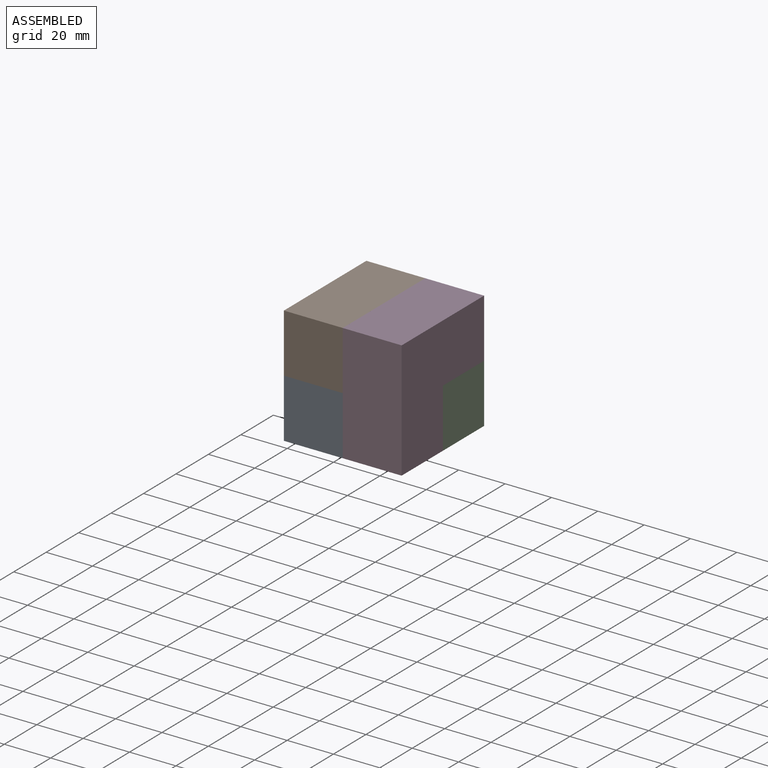
[diagram: assembled view]
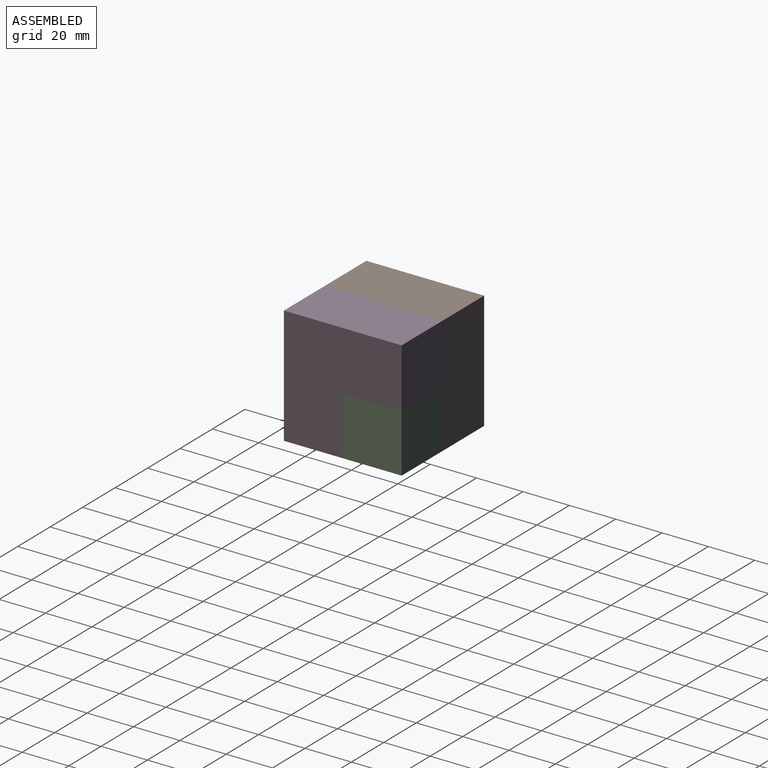
[diagram: assembled view, second angle]
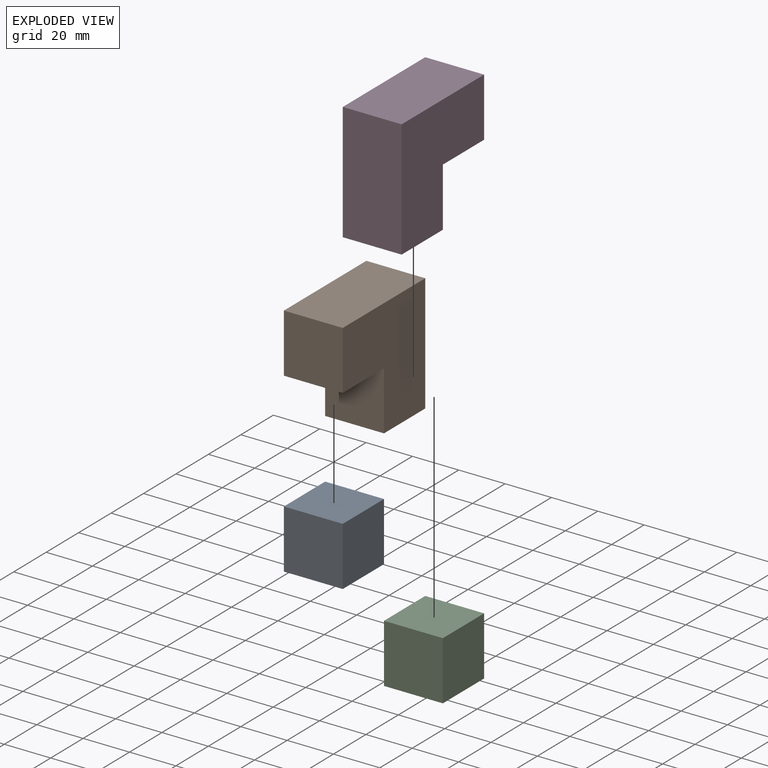
[diagram: exploded view]
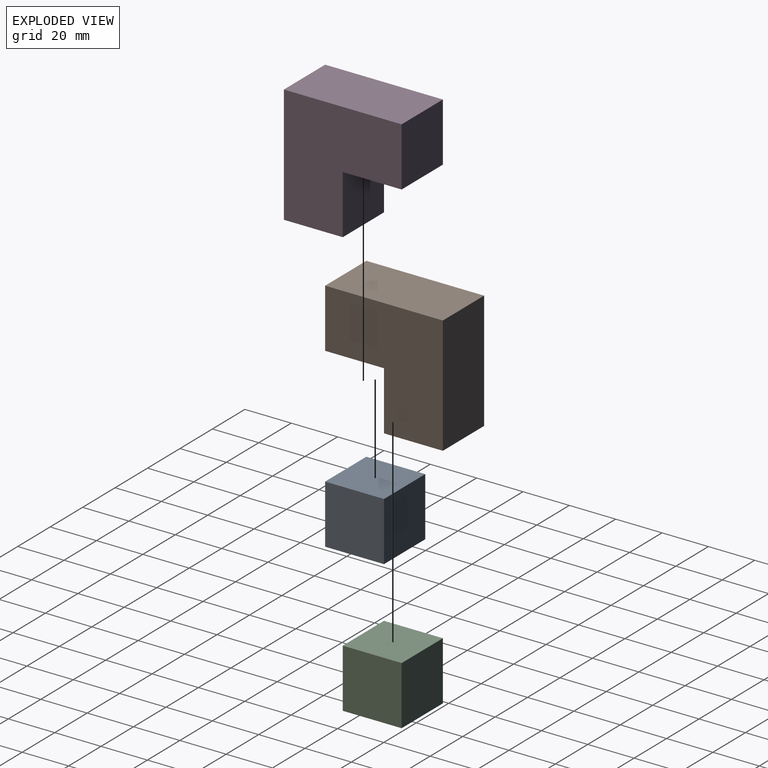
[diagram: exploded view, second angle]
ASSEMBLY  parts=4 mates=3
PART A: 6 faces, bbox 25.4x25.4x25.4 mm
  f0: plane 25.4x25.4mm, normal (-1,0,0), area 645.2mm2, adj f1,f3,f4,f5
  f1: plane 25.4x25.4mm, normal (0,0,-1), area 645.2mm2, adj f0,f2,f4,f5
  f2: plane 25.4x25.4mm, normal (1,0,0), area 645.2mm2, adj f1,f3,f4,f5
  f3: plane 25.4x25.4mm, normal (0,0,1), area 645.2mm2, adj f0,f2,f4,f5
  f4: plane 25.4x25.4mm, normal (0,-1,0), area 645.2mm2, adj f0,f1,f2,f3
  f5: plane 25.4x25.4mm, normal (0,1,0), area 645.2mm2, adj f0,f1,f2,f3
PART B: 8 faces, bbox 25.4x50.8x50.8 mm
  f0: plane 50.8x50.8mm, normal (-1,0,0), area 1935.5mm2, adj f1,f3,f4,f5,f6,f7
  f1: plane 25.4x25.4mm, normal (0,0,-1), area 645.2mm2, adj f0,f2,f4,f6
  f2: plane 50.8x50.8mm, normal (1,0,0), area 1935.5mm2, adj f1,f3,f4,f5,f6,f7
  f3: plane 50.8x25.4mm, normal (0,0,1), area 1290.3mm2, adj f0,f2,f4,f5
  f4: plane 25.4x25.4mm, normal (0,-1,0), area 645.2mm2, adj f0,f1,f2,f3
  f5: plane 50.8x25.4mm, normal (0,1,0), area 1290.3mm2, adj f0,f2,f3,f7
  f6: plane 25.4x25.4mm, normal (0,-1,0), area 645.2mm2, adj f0,f1,f2,f7
  f7: plane 25.4x25.4mm, normal (0,0,-1), area 645.2mm2, adj f0,f2,f5,f6
PART C: same geometry as A
PART D: same geometry as B
PLACE A rot(axis=(0,0,1),180deg) t=(-32.83,-50.8,0)mm
PLACE B rot(axis=(0,0.71,0.71),180deg) t=(-56.15,-25.4,38.1)mm
PLACE C at identity fixed
PLACE D rot(axis=(1,0,0),90deg) t=(23.32,-25.4,38.1)mm
MATE fastened B.f5 <-> D.f5  axis (0,0,1) through (-16.41,0,38.1)mm
MATE fastened A.f3 <-> B.f6  axis (0,0,1) through (-41.81,-25.4,12.7)mm
MATE fastened C.f3 <-> D.f6  axis (0,0,1) through (8.99,-25.4,12.7)mm
